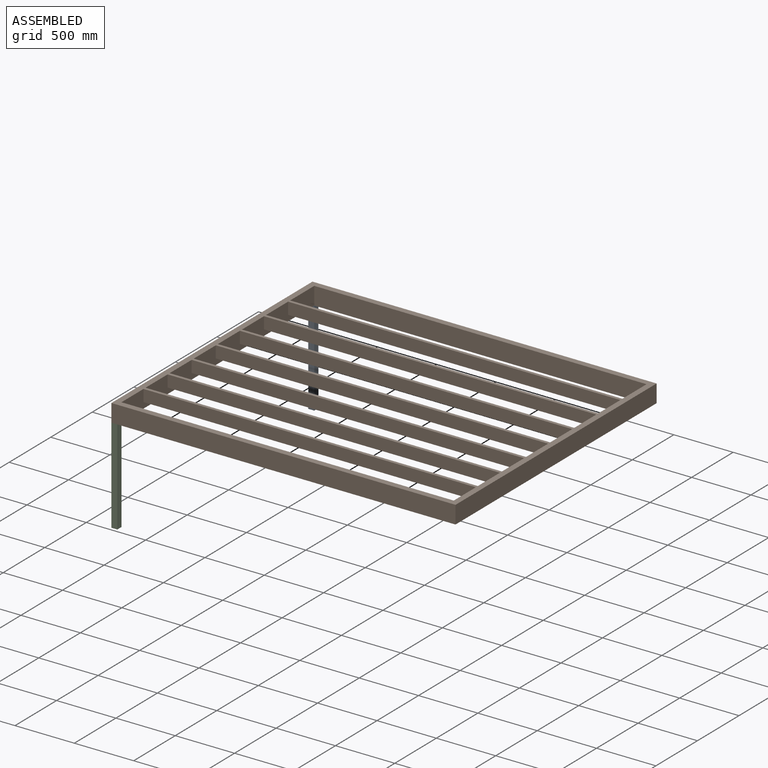
[diagram: assembled view]
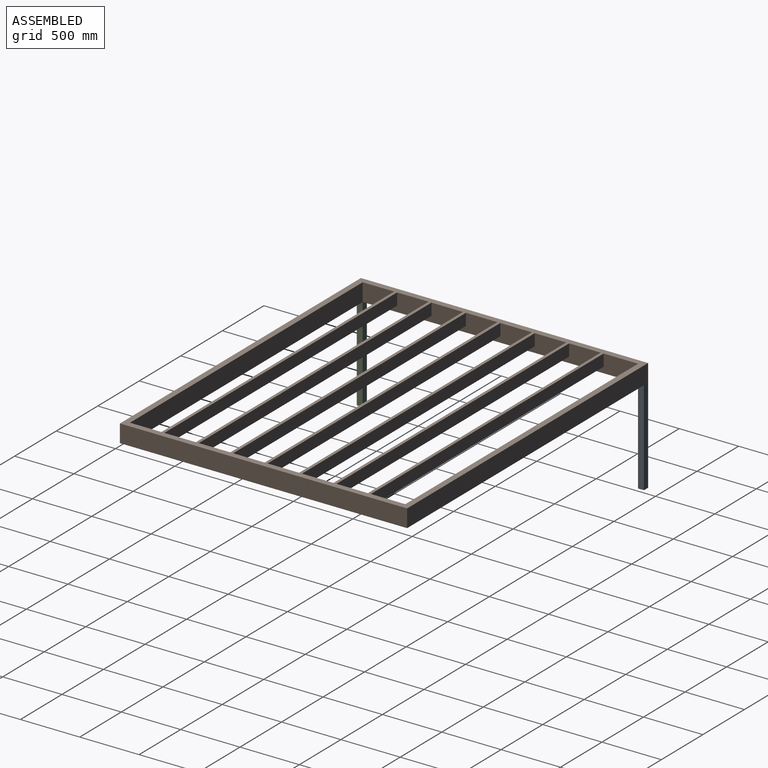
[diagram: assembled view, second angle]
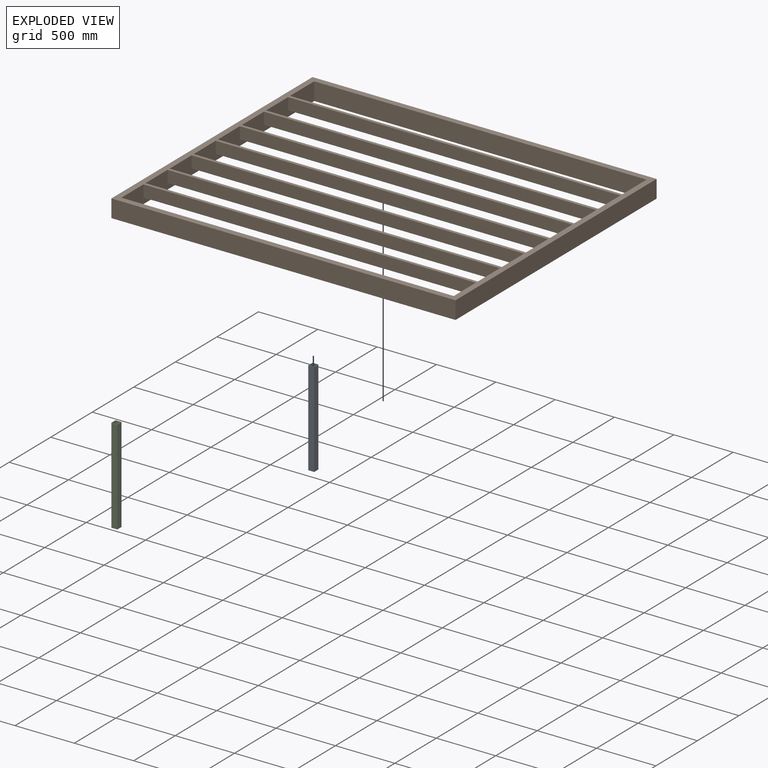
[diagram: exploded view]
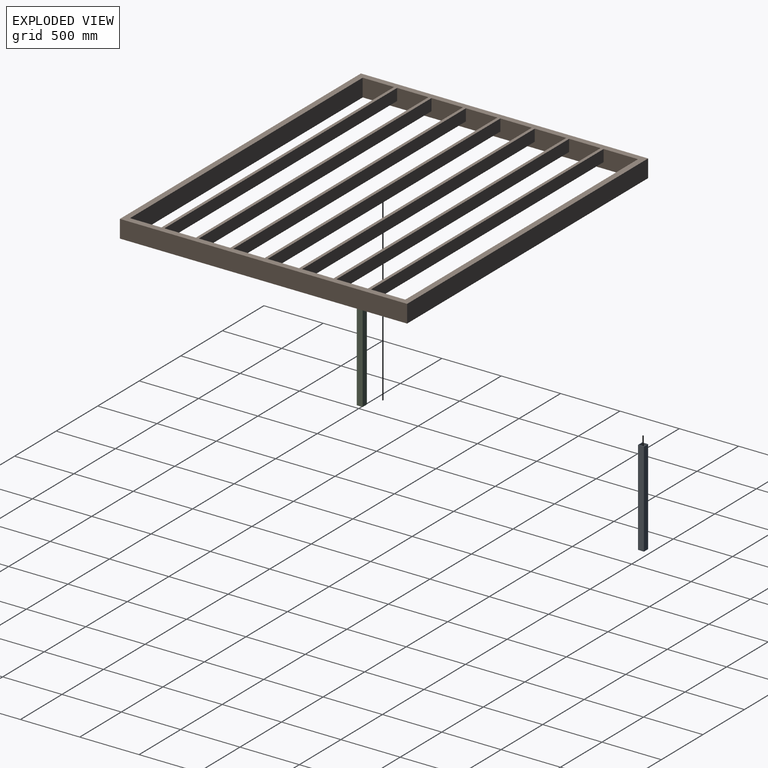
[diagram: exploded view, second angle]
ASSEMBLY  parts=3 mates=2
PART A: 10 faces, bbox 50x50x800 mm
  f0: plane 800x50mm, normal (0,-1,0), area 40000mm2, adj f1,f7,f8,f9
  f1: plane 800x50mm, normal (1,0,0), area 40000mm2, adj f0,f2,f8,f9
  f2: plane 800x50mm, normal (0,1,0), area 40000mm2, adj f1,f7,f8,f9
  f3: plane 800x44mm, normal (0,-1,0), area 35200mm2, adj f4,f6,f8,f9
  f4: plane 800x44mm, normal (-1,0,0), area 35200mm2, adj f3,f5,f8,f9
  f5: plane 800x44mm, normal (0,1,0), area 35200mm2, adj f4,f6,f8,f9
  f6: plane 800x44mm, normal (1,0,0), area 35200mm2, adj f3,f5,f8,f9
  f7: plane 800x50mm, normal (-1,0,0), area 40000mm2, adj f0,f2,f8,f9
  f8: plane 50x50mm, normal (0,0,1), area 564mm2, adj f0,f1,f2,f3,f4,f5,f6,f7
  f9: plane 50x50mm, normal (0,0,-1), area 564mm2, adj f0,f1,f2,f3,f4,f5,f6,f7
PART B: 31 faces, bbox 2900x2420x150 mm
  f0: plane 2320x150mm, normal (1,0,0), area 330500mm2, adj f5,f6,f8,f9,f10,f11,f12,f13
  f1: plane 2900x150mm, normal (0,-1,0), area 435000mm2, adj f2,f7,f8,f9
  f2: plane 2420x150mm, normal (1,0,0), area 363000mm2, adj f1,f3,f8,f9
  f3: plane 2900x150mm, normal (0,1,0), area 435000mm2, adj f2,f7,f8,f9
  f4: plane 2320x150mm, normal (-1,0,0), area 330500mm2, adj f5,f6,f8,f9,f10,f11,f12,f13
  f5: plane 2800x150mm, normal (0,1,0), area 420000mm2, adj f0,f4,f8,f9
  f6: plane 2800x150mm, normal (0,-1,0), area 420000mm2, adj f0,f4,f8,f9
  f7: plane 2420x150mm, normal (-1,0,0), area 363000mm2, adj f1,f3,f8,f9
  f8: plane 2900x2420mm, normal (0,0,1), area 1012000mm2, adj f0,f1,f2,f3,f4,f5,f6,f7
  f9: plane 2900x2420mm, normal (0,0,-1), area 522000mm2, adj f0,f1,f2,f3,f4,f5,f6,f7
  f10: plane 2800x100mm, normal (0,1,0), area 280000mm2, adj f0,f4,f8,f12
  f11: plane 2800x100mm, normal (0,-1,0), area 280000mm2, adj f0,f4,f8,f12
  f12: plane 2800x25mm, normal (0,0,-1), area 70000mm2, adj f0,f4,f10,f11
  f13: plane 2800x100mm, normal (0,1,0), area 280000mm2, adj f0,f4,f8,f15
  f14: plane 2800x100mm, normal (0,-1,0), area 280000mm2, adj f0,f4,f8,f15
  f15: plane 2800x25mm, normal (0,0,-1), area 70000mm2, adj f0,f4,f13,f14
  f16: plane 2800x100mm, normal (0,1,0), area 280000mm2, adj f0,f4,f8,f18
  f17: plane 2800x100mm, normal (0,-1,0), area 280000mm2, adj f0,f4,f8,f18
  f18: plane 2800x25mm, normal (0,0,-1), area 70000mm2, adj f0,f4,f16,f17
  f19: plane 2800x100mm, normal (0,1,0), area 280000mm2, adj f0,f4,f8,f21
  f20: plane 2800x100mm, normal (0,-1,0), area 280000mm2, adj f0,f4,f8,f21
  f21: plane 2800x25mm, normal (0,0,-1), area 70000mm2, adj f0,f4,f19,f20
  f22: plane 2800x100mm, normal (0,1,0), area 280000mm2, adj f0,f4,f8,f24
  f23: plane 2800x100mm, normal (0,-1,0), area 280000mm2, adj f0,f4,f8,f24
  f24: plane 2800x25mm, normal (0,0,-1), area 70000mm2, adj f0,f4,f22,f23
  f25: plane 2800x100mm, normal (0,1,0), area 280000mm2, adj f0,f4,f8,f27
  f26: plane 2800x100mm, normal (0,-1,0), area 280000mm2, adj f0,f4,f8,f27
  f27: plane 2800x25mm, normal (0,0,-1), area 70000mm2, adj f0,f4,f25,f26
  f28: plane 2800x100mm, normal (0,1,0), area 280000mm2, adj f0,f4,f8,f30
  f29: plane 2800x100mm, normal (0,-1,0), area 280000mm2, adj f0,f4,f8,f30
  f30: plane 2800x25mm, normal (0,0,-1), area 70000mm2, adj f0,f4,f28,f29
PART C: same geometry as A
PLACE A t=(-1611.72,1475.04,-305.78)mm
PLACE B t=(1238.28,-894.96,494.22)mm
PLACE C t=(-1611.72,-894.96,-305.78)mm
MATE fastened C.f8 <-> B.f9  axis (0,0,1) through (-1661.72,-894.96,494.22)mm
MATE fastened A.f8 <-> B.f9  axis (0,0,1) through (-1661.72,1525.04,494.22)mm
